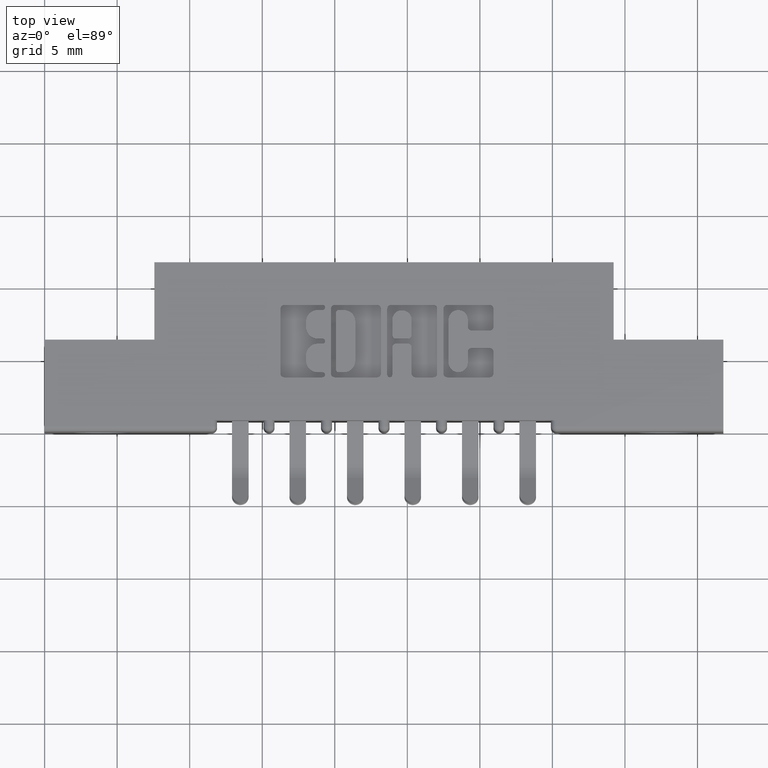
[diagram: clean part render]
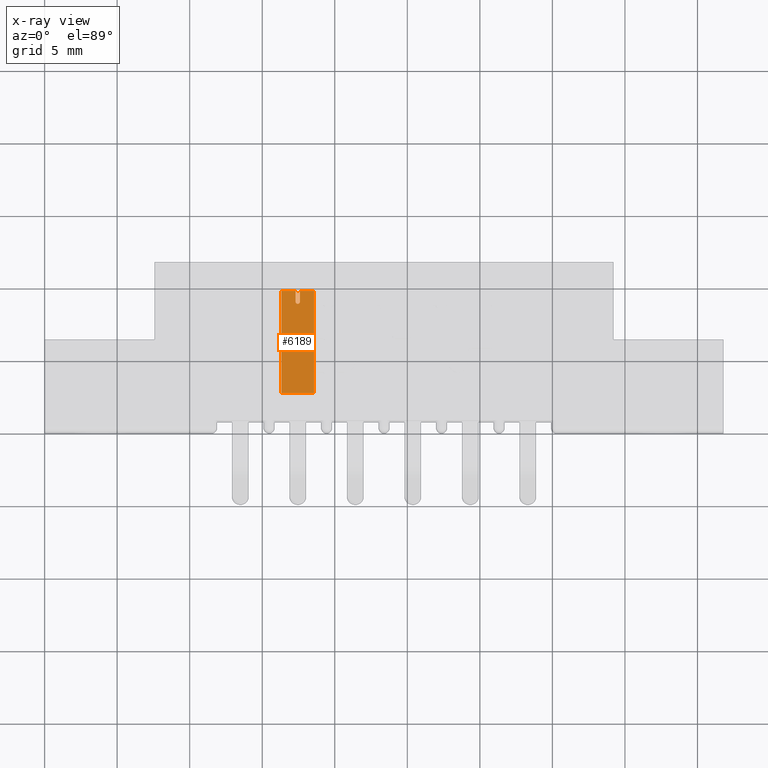
[diagram: x-ray — body ghosted, one internal face saturated and labeled with its STEP entity id]
A machine part, top view, then the same camera in x-ray: the body is ghosted and one INTERNAL B-rep face — a face not visible from any outside direction — is saturated and labeled: STEP entity #6189.
In plain terms, the highlighted planar face has unit normal (-0, -0, 1).
Its self-contained STEP definition (entity closure, byte-faithful):
#97 = VERTEX_POINT ( 'NONE', #3491 ) ;
#313 = DIRECTION ( 'NONE',  ( -2.118454691336755000E-045, -1.232783390642718400E-016, 1.000000000000000000 ) ) ;
#638 = VECTOR ( 'NONE', #7404, 39.37007874015748100 ) ;
#1122 = ORIENTED_EDGE ( 'NONE', *, *, #9403, .F. ) ;
#1154 = DIRECTION ( 'NONE',  ( -1.908057314503322300E-029, -1.000000000000000000, -1.232783390642718400E-016 ) ) ;
#1166 = AXIS2_PLACEMENT_3D ( 'NONE', #10242, #10313, #4101 ) ;
#1238 = CARTESIAN_POINT ( 'NONE',  ( 0.04449999999999893600, 0.2770000000000655300, -0.03299999999995884700 ) ) ;
#1428 = CARTESIAN_POINT ( 'NONE',  ( -0.04449999999992135200, 0.2770000000000597000, -0.03299999999995884700 ) ) ;
#1850 = EDGE_CURVE ( 'NONE', #97, #7869, #4793, .T. ) ;
#1889 = DIRECTION ( 'NONE',  ( 1.908057314503322300E-029, 1.000000000000000000, 1.219574997171547200E-015 ) ) ;
#2137 = CARTESIAN_POINT ( 'NONE',  ( -0.04449999999999893600, -4.302660590021214300E-015, -0.03299999999995898600 ) ) ;
#2245 = VECTOR ( 'NONE', #1889, 39.37007874015748100 ) ;
#2323 = EDGE_LOOP ( 'NONE', ( #9237, #3139, #1122, #5520, #4905, #5485, #3396, #11280 ) ) ;
#2537 = LINE ( 'NONE', #4739, #2685 ) ;
#2581 = AXIS2_PLACEMENT_3D ( 'NONE', #10947, #313, #1154 ) ;
#2685 = VECTOR ( 'NONE', #9219, 39.37007874015748100 ) ;
#2799 = VERTEX_POINT ( 'NONE', #4957 ) ;
#2911 = EDGE_CURVE ( 'NONE', #3755, #6444, #4626, .T. ) ;
#2919 = CARTESIAN_POINT ( 'NONE',  ( 0.04449999999999893600, 0.2770000000000655300, -0.03299999999995884700 ) ) ;
#3056 = CIRCLE ( 'NONE', #1166, 0.005999999999999983600 ) ;
#3067 = LINE ( 'NONE', #7908, #9497 ) ;
#3139 = ORIENTED_EDGE ( 'NONE', *, *, #2911, .T. ) ;
#3236 = VECTOR ( 'NONE', #9904, 39.37007874015748100 ) ;
#3354 = DIRECTION ( 'NONE',  ( -1.000000000000000000, -1.908057314503322300E-029, -8.016385796673679400E-047 ) ) ;
#3396 = ORIENTED_EDGE ( 'NONE', *, *, #1850, .F. ) ;
#3491 = CARTESIAN_POINT ( 'NONE',  ( -0.005999999999999881300, 0.2770000000000598100, -0.03299999999995884700 ) ) ;
#3594 = LINE ( 'NONE', #3966, #5982 ) ;
#3755 = VERTEX_POINT ( 'NONE', #4772 ) ;
#3833 = EDGE_CURVE ( 'NONE', #3755, #11275, #3056, .T. ) ;
#3966 = CARTESIAN_POINT ( 'NONE',  ( -0.005999999999999881300, 0.2420000000000599400, -0.03299999999995898600 ) ) ;
#4101 = DIRECTION ( 'NONE',  ( -1.908057314503325700E-029, -1.000000000000000000, 0.0000000000000000000 ) ) ;
#4382 = DIRECTION ( 'NONE',  ( -1.000000000000000000, -1.908057314503322300E-029, -8.016385796673679400E-047 ) ) ;
#4408 = LINE ( 'NONE', #2919, #638 ) ;
#4535 = CARTESIAN_POINT ( 'NONE',  ( 0.04449999999999893600, 0.2770000000000655300, -0.03299999999995884700 ) ) ;
#4556 = CARTESIAN_POINT ( 'NONE',  ( 0.005999999999999881300, 0.2420000000000599400, -0.03299999999995898600 ) ) ;
#4626 = LINE ( 'NONE', #4556, #2245 ) ;
#4739 = CARTESIAN_POINT ( 'NONE',  ( -0.04449999999992135200, 0.2770000000000597000, -0.03299999999995884700 ) ) ;
#4772 = CARTESIAN_POINT ( 'NONE',  ( 0.005999999999999881300, 0.2480000000000599500, -0.03299999999995898600 ) ) ;
#4779 = VECTOR ( 'NONE', #3354, 39.37007874015748100 ) ;
#4793 = LINE ( 'NONE', #4535, #3236 ) ;
#4905 = ORIENTED_EDGE ( 'NONE', *, *, #8237, .T. ) ;
#4957 = CARTESIAN_POINT ( 'NONE',  ( 0.04449999999999893600, 5.531992187170133300E-015, -0.03299999999995898600 ) ) ;
#5485 = ORIENTED_EDGE ( 'NONE', *, *, #7672, .T. ) ;
#5520 = ORIENTED_EDGE ( 'NONE', *, *, #6738, .F. ) ;
#5652 = PLANE ( 'NONE',  #2581 ) ;
#5734 = VERTEX_POINT ( 'NONE', #2137 ) ;
#5982 = VECTOR ( 'NONE', #8451, 39.37007874015748100 ) ;
#6189 = ADVANCED_FACE ( 'NONE', ( #9829 ), #5652, .F. ) ;
#6444 = VERTEX_POINT ( 'NONE', #6496 ) ;
#6496 = CARTESIAN_POINT ( 'NONE',  ( 0.005999999999999881300, 0.2770000000000598100, -0.03299999999995884700 ) ) ;
#6605 = LINE ( 'NONE', #6956, #4779 ) ;
#6738 = EDGE_CURVE ( 'NONE', #2799, #8107, #4408, .T. ) ;
#6956 = CARTESIAN_POINT ( 'NONE',  ( 0.04449999999999893600, 5.531992187170133300E-015, -0.03299999999995898600 ) ) ;
#7404 = DIRECTION ( 'NONE',  ( 1.908057314503322300E-029, 1.000000000000000000, 1.232783390642718100E-016 ) ) ;
#7672 = EDGE_CURVE ( 'NONE', #5734, #7869, #2537, .T. ) ;
#7716 = CARTESIAN_POINT ( 'NONE',  ( -0.005999999999999881300, 0.2480000000000599500, -0.03299999999995898600 ) ) ;
#7869 = VERTEX_POINT ( 'NONE', #1428 ) ;
#7908 = CARTESIAN_POINT ( 'NONE',  ( 0.04449999999999893600, 0.2770000000000655300, -0.03299999999995884700 ) ) ;
#8107 = VERTEX_POINT ( 'NONE', #1238 ) ;
#8237 = EDGE_CURVE ( 'NONE', #2799, #5734, #6605, .T. ) ;
#8451 = DIRECTION ( 'NONE',  ( 1.908057314503322300E-029, 1.000000000000000000, 1.219574997171547200E-015 ) ) ;
#9219 = DIRECTION ( 'NONE',  ( 1.908057314503322300E-029, 1.000000000000000000, 1.232783390642718100E-016 ) ) ;
#9237 = ORIENTED_EDGE ( 'NONE', *, *, #3833, .F. ) ;
#9403 = EDGE_CURVE ( 'NONE', #8107, #6444, #3067, .T. ) ;
#9497 = VECTOR ( 'NONE', #4382, 39.37007874015748100 ) ;
#9829 = FACE_OUTER_BOUND ( 'NONE', #2323, .T. ) ;
#9904 = DIRECTION ( 'NONE',  ( -1.000000000000000000, -1.908057314503322300E-029, -8.016385796673679400E-047 ) ) ;
#10242 = CARTESIAN_POINT ( 'NONE',  ( 0.0000000000000000000, 0.2480000000000598100, -0.03299999999995884700 ) ) ;
#10313 = DIRECTION ( 'NONE',  ( 2.118454691336755000E-045, 1.232783390642718400E-016, -1.000000000000000000 ) ) ;
#10396 = EDGE_CURVE ( 'NONE', #11275, #97, #3594, .T. ) ;
#10947 = CARTESIAN_POINT ( 'NONE',  ( 0.04449999999999893600, 0.2770000000000655300, -0.03299999999995884700 ) ) ;
#11275 = VERTEX_POINT ( 'NONE', #7716 ) ;
#11280 = ORIENTED_EDGE ( 'NONE', *, *, #10396, .F. ) ;